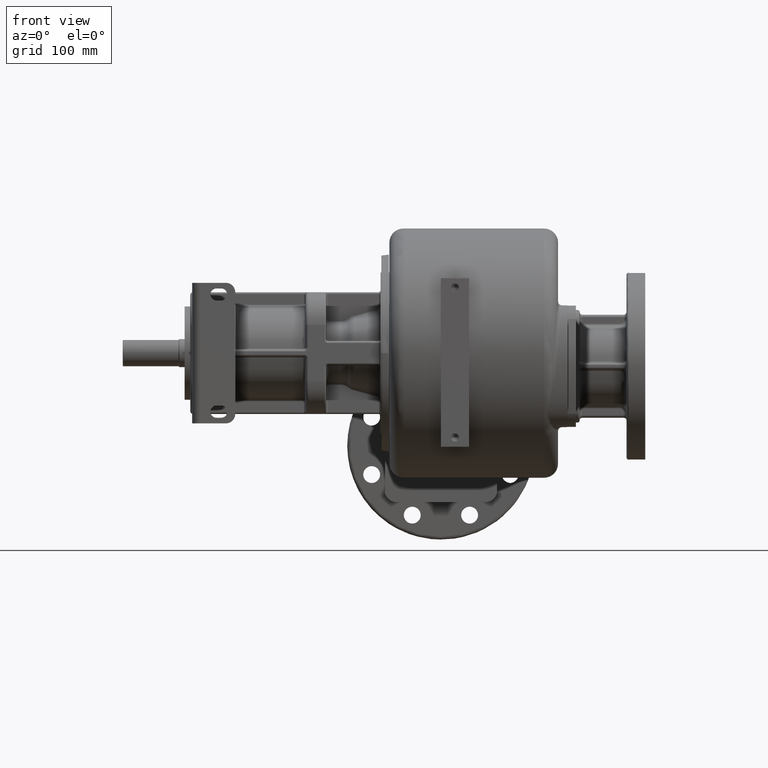
[diagram: clean part render]
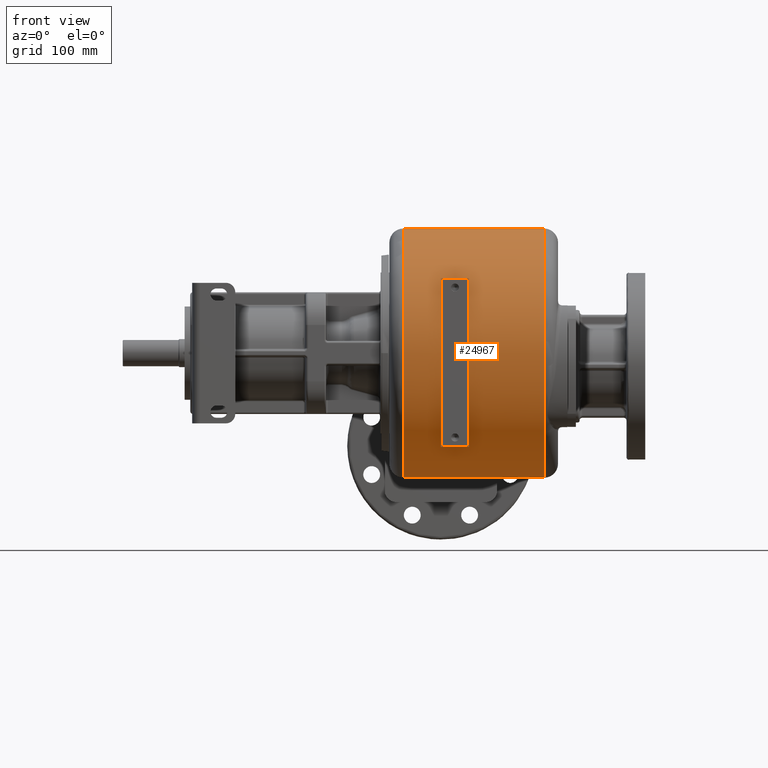
[diagram: same view with one face highlighted and labeled with its STEP entity id]
A machine part, front view. The second image highlights one B-rep face of the part: STEP entity #24967.
In plain terms, the highlighted cylindrical surface (partial cylindrical patch) has radius 133 mm, axis along (-1, 0, 0).
Its self-contained STEP definition (entity closure, byte-faithful):
#6509=DIRECTION('',(1.E0,1.191817015448E-13,0.E0));
#6510=VECTOR('',#6509,1.5E2);
#6511=CARTESIAN_POINT('',(-5.5E1,1.34E2,1.33E2));
#6512=LINE('',#6511,#6510);
#6571=CARTESIAN_POINT('',(-5.5E1,1.34E2,0.E0));
#6572=DIRECTION('',(-1.E0,0.E0,0.E0));
#6573=DIRECTION('',(0.E0,0.E0,-1.E0));
#6574=AXIS2_PLACEMENT_3D('',#6571,#6572,#6573);
#6576=CARTESIAN_POINT('',(9.5E1,1.34E2,0.E0));
#6577=DIRECTION('',(1.E0,0.E0,0.E0));
#6578=DIRECTION('',(0.E0,0.E0,1.E0));
#6579=AXIS2_PLACEMENT_3D('',#6576,#6577,#6578);
#6581=DIRECTION('',(1.E0,-6.385410718697E-14,0.E0));
#6582=VECTOR('',#6581,1.5E2);
#6583=CARTESIAN_POINT('',(-5.5E1,1.34E2,-1.33E2));
#6584=LINE('',#6583,#6582);
#6585=DIRECTION('',(-1.E0,0.E0,0.E0));
#6586=VECTOR('',#6585,3.E1);
#6587=CARTESIAN_POINT('',(1.5E1,4.631305684425E1,-1.E2));
#6588=LINE('',#6587,#6586);
#6589=CARTESIAN_POINT('',(1.5E1,1.34E2,0.E0));
#6590=DIRECTION('',(-1.E0,0.E0,0.E0));
#6591=DIRECTION('',(0.E0,-6.593003244793E-1,-7.518796992481E-1));
#6592=AXIS2_PLACEMENT_3D('',#6589,#6590,#6591);
#6594=DIRECTION('',(-1.E0,0.E0,0.E0));
#6595=VECTOR('',#6594,3.E1);
#6596=CARTESIAN_POINT('',(1.5E1,2.775029411805E1,8.E1));
#6597=LINE('',#6596,#6595);
#6598=CARTESIAN_POINT('',(-1.5E1,1.34E2,0.E0));
#6599=DIRECTION('',(-1.E0,0.E0,0.E0));
#6600=DIRECTION('',(0.E0,-6.593003244793E-1,-7.518796992481E-1));
#6601=AXIS2_PLACEMENT_3D('',#6598,#6599,#6600);
#13359=CARTESIAN_POINT('',(-1.5E1,4.631305684425E1,-1.E2));
#13360=VERTEX_POINT('',#13359);
#13361=CARTESIAN_POINT('',(1.5E1,4.631305684425E1,-1.E2));
#13362=VERTEX_POINT('',#13361);
#13363=CARTESIAN_POINT('',(1.5E1,2.775029411805E1,8.E1));
#13364=VERTEX_POINT('',#13363);
#13365=CARTESIAN_POINT('',(-1.5E1,2.775029411805E1,8.E1));
#13366=VERTEX_POINT('',#13365);
#13457=CARTESIAN_POINT('',(9.5E1,1.34E2,-1.33E2));
#13458=VERTEX_POINT('',#13457);
#13459=CARTESIAN_POINT('',(9.5E1,1.34E2,1.33E2));
#13460=VERTEX_POINT('',#13459);
#13493=CARTESIAN_POINT('',(-5.5E1,1.34E2,-1.33E2));
#13494=VERTEX_POINT('',#13493);
#13497=CARTESIAN_POINT('',(-5.5E1,1.34E2,1.33E2));
#13498=VERTEX_POINT('',#13497);
#24944=CARTESIAN_POINT('',(-7.E1,1.34E2,0.E0));
#24945=DIRECTION('',(-1.E0,0.E0,0.E0));
#24946=DIRECTION('',(0.E0,0.E0,1.E0));
#24947=AXIS2_PLACEMENT_3D('',#24944,#24945,#24946);
#24948=CYLINDRICAL_SURFACE('',#24947,1.33E2);
#24950=ORIENTED_EDGE('',*,*,#24949,.T.);
#24951=ORIENTED_EDGE('',*,*,#24913,.T.);
#24952=ORIENTED_EDGE('',*,*,#20301,.T.);
#24954=ORIENTED_EDGE('',*,*,#24953,.F.);
#24955=EDGE_LOOP('',(#24950,#24951,#24952,#24954));
#24956=FACE_OUTER_BOUND('',#24955,.F.);
#24958=ORIENTED_EDGE('',*,*,#24957,.F.);
#24960=ORIENTED_EDGE('',*,*,#24959,.T.);
#24962=ORIENTED_EDGE('',*,*,#24961,.T.);
#24964=ORIENTED_EDGE('',*,*,#24963,.F.);
#24965=EDGE_LOOP('',(#24958,#24960,#24962,#24964));
#24966=FACE_BOUND('',#24965,.F.);
#24967=ADVANCED_FACE('',(#24956,#24966),#24948,.T.);
#6575=CIRCLE('',#6574,1.33E2);
#6580=CIRCLE('',#6579,1.33E2);
#6593=CIRCLE('',#6592,1.33E2);
#6602=CIRCLE('',#6601,1.33E2);
#20301=EDGE_CURVE('',#13460,#13458,#6580,.T.);
#24913=EDGE_CURVE('',#13498,#13460,#6512,.T.);
#24949=EDGE_CURVE('',#13494,#13498,#6575,.T.);
#24953=EDGE_CURVE('',#13494,#13458,#6584,.T.);
#24957=EDGE_CURVE('',#13362,#13360,#6588,.T.);
#24959=EDGE_CURVE('',#13362,#13364,#6593,.T.);
#24961=EDGE_CURVE('',#13364,#13366,#6597,.T.);
#24963=EDGE_CURVE('',#13360,#13366,#6602,.T.);